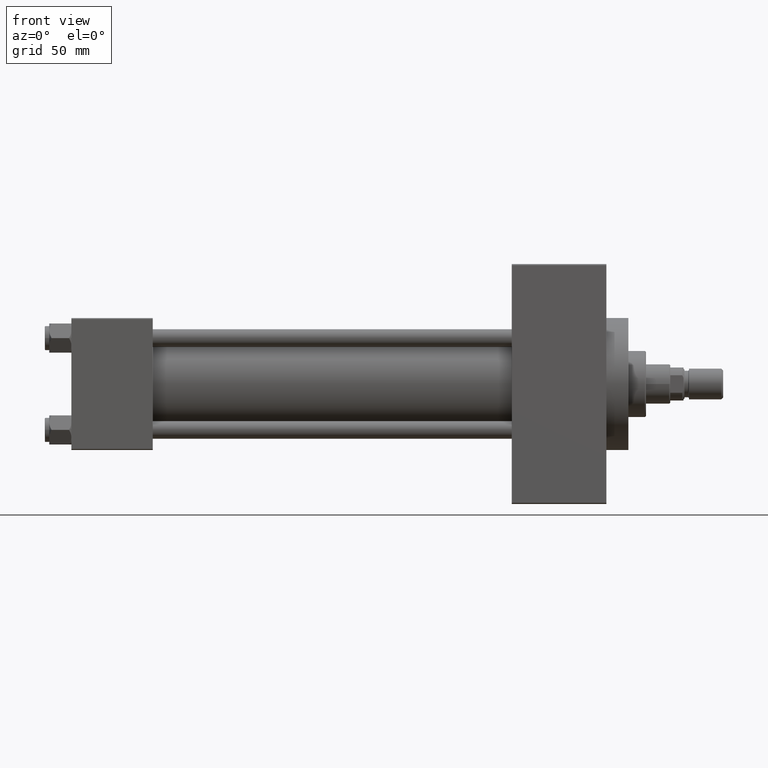
[diagram: clean part render]
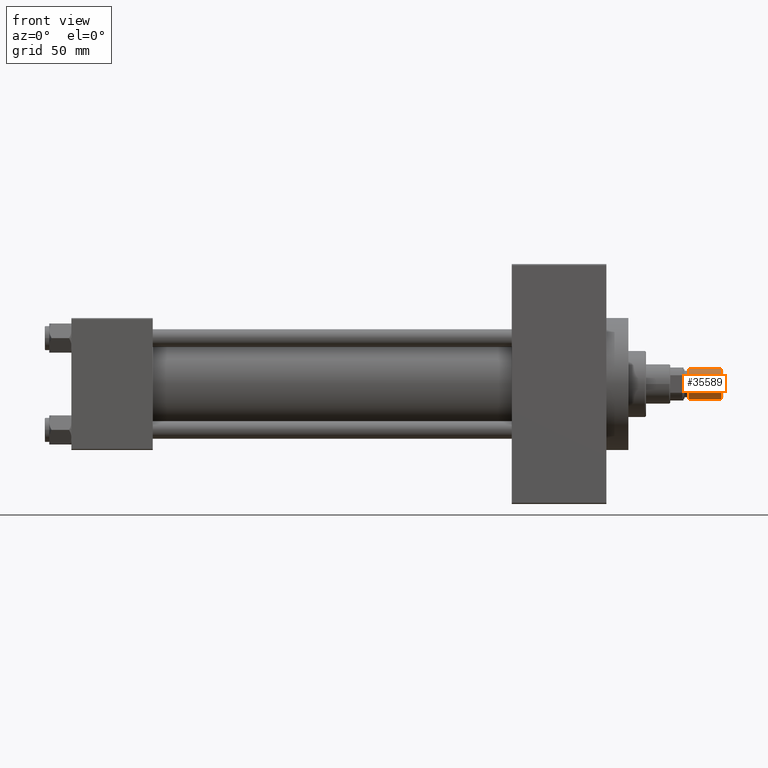
[diagram: same view with one face highlighted and labeled with its STEP entity id]
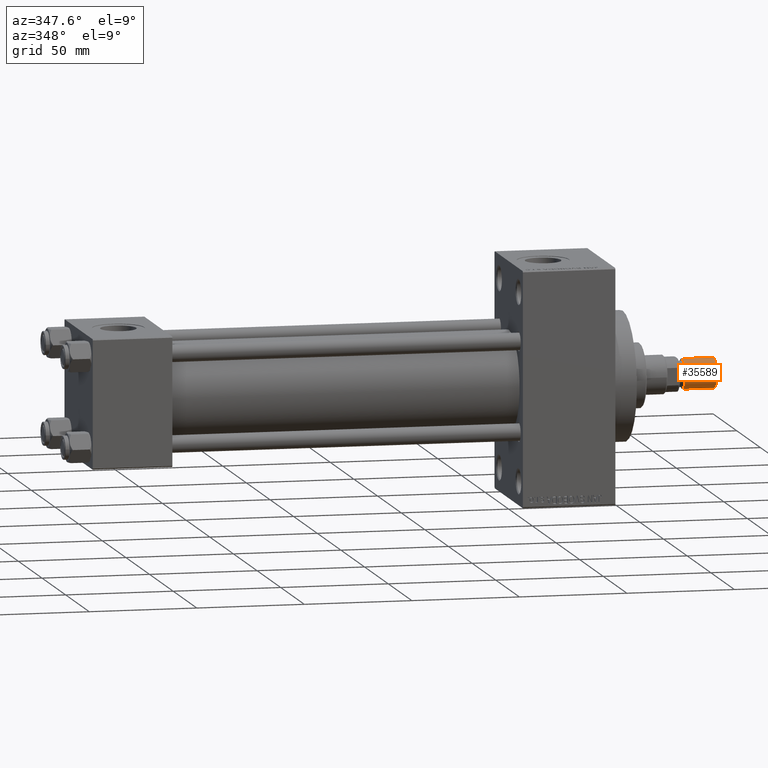
[diagram: same view with one face highlighted and labeled with its STEP entity id]
A machine part, front view. The second image highlights one B-rep face of the part: STEP entity #35589.
A second angle (auxiliary view) of the same face is appended — the face is thin or edge-on in the first view.
In plain terms, the highlighted cylindrical surface (edge-blend (fillet) strip) has radius 7 mm, axis along (1, -0, -0).
Its self-contained STEP definition (entity closure, byte-faithful):
#311 = VERTEX_POINT ( 'NONE', #20355 ) ;
#1590 = LINE ( 'NONE', #31134, #33620 ) ;
#4176 = DIRECTION ( 'NONE',  ( -0.000000000000000000, -0.000000000000000000, -1.000000000000000000 ) ) ;
#6357 = EDGE_CURVE ( 'NONE', #311, #24848, #12482, .T. ) ;
#7587 = FACE_OUTER_BOUND ( 'NONE', #7803, .T. ) ;
#7803 = EDGE_LOOP ( 'NONE', ( #20254, #45468, #11921, #38261 ) ) ;
#9102 = VECTOR ( 'NONE', #23978, 1000.000000000000000 ) ;
#9204 = LINE ( 'NONE', #9929, #9102 ) ;
#9929 = CARTESIAN_POINT ( 'NONE',  ( 7.000000000000000000, 8.572527594031473190E-16, 15.50000000000000000 ) ) ;
#11454 = DIRECTION ( 'NONE',  ( -1.000000000000000000, 0.000000000000000000, 0.000000000000000000 ) ) ;
#11921 = ORIENTED_EDGE ( 'NONE', *, *, #47305, .T. ) ;
#12298 = DIRECTION ( 'NONE',  ( 1.000000000000000000, 0.000000000000000000, 0.000000000000000000 ) ) ;
#12344 = CARTESIAN_POINT ( 'NONE',  ( -7.000000000000000000, 0.000000000000000000, 0.8000000000000020428 ) ) ;
#12482 = CIRCLE ( 'NONE', #24102, 7.000000000000000000 ) ;
#20254 = ORIENTED_EDGE ( 'NONE', *, *, #41699, .F. ) ;
#20355 = CARTESIAN_POINT ( 'NONE',  ( -7.000000000000000000, 0.000000000000000000, 15.50000000000000000 ) ) ;
#22147 = AXIS2_PLACEMENT_3D ( 'NONE', #37743, #37502, #12298 ) ;
#22593 = CYLINDRICAL_SURFACE ( 'NONE', #36151, 7.000000000000000000 ) ;
#23978 = DIRECTION ( 'NONE',  ( -0.000000000000000000, -0.000000000000000000, -1.000000000000000000 ) ) ;
#24102 = AXIS2_PLACEMENT_3D ( 'NONE', #41844, #45003, #30225 ) ;
#24848 = VERTEX_POINT ( 'NONE', #41997 ) ;
#26861 = VERTEX_POINT ( 'NONE', #31187 ) ;
#29619 = CARTESIAN_POINT ( 'NONE',  ( 0.000000000000000000, 0.000000000000000000, 15.50000000000000000 ) ) ;
#30225 = DIRECTION ( 'NONE',  ( 1.000000000000000000, 0.000000000000000000, 0.000000000000000000 ) ) ;
#31134 = CARTESIAN_POINT ( 'NONE',  ( -7.000000000000000000, 0.000000000000000000, 15.50000000000000000 ) ) ;
#31187 = CARTESIAN_POINT ( 'NONE',  ( 7.000000000000000000, 8.572527594031473190E-16, 0.8000000000000020428 ) ) ;
#33620 = VECTOR ( 'NONE', #45443, 1000.000000000000000 ) ;
#34243 = EDGE_CURVE ( 'NONE', #45878, #26861, #43025, .T. ) ;
#35589 = ADVANCED_FACE ( 'NONE', ( #7587 ), #22593, .T. ) ;
#36151 = AXIS2_PLACEMENT_3D ( 'NONE', #29619, #4176, #11454 ) ;
#37502 = DIRECTION ( 'NONE',  ( -0.000000000000000000, -0.000000000000000000, 1.000000000000000000 ) ) ;
#37743 = CARTESIAN_POINT ( 'NONE',  ( 0.000000000000000000, 0.000000000000000000, 0.8000000000000020428 ) ) ;
#38261 = ORIENTED_EDGE ( 'NONE', *, *, #34243, .T. ) ;
#41699 = EDGE_CURVE ( 'NONE', #24848, #26861, #9204, .T. ) ;
#41844 = CARTESIAN_POINT ( 'NONE',  ( 0.000000000000000000, 0.000000000000000000, 15.50000000000000000 ) ) ;
#41997 = CARTESIAN_POINT ( 'NONE',  ( 7.000000000000000000, 8.572527594031473190E-16, 15.50000000000000000 ) ) ;
#43025 = CIRCLE ( 'NONE', #22147, 7.000000000000000000 ) ;
#45003 = DIRECTION ( 'NONE',  ( 0.000000000000000000, 0.000000000000000000, 1.000000000000000000 ) ) ;
#45443 = DIRECTION ( 'NONE',  ( -0.000000000000000000, -0.000000000000000000, -1.000000000000000000 ) ) ;
#45468 = ORIENTED_EDGE ( 'NONE', *, *, #6357, .F. ) ;
#45878 = VERTEX_POINT ( 'NONE', #12344 ) ;
#47305 = EDGE_CURVE ( 'NONE', #311, #45878, #1590, .T. ) ;